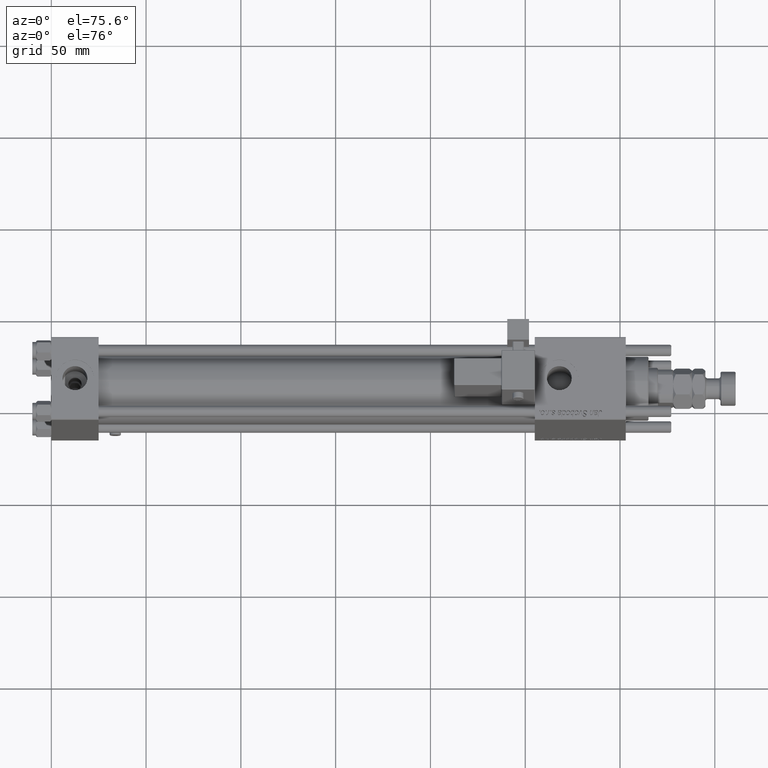
[diagram: clean part render]
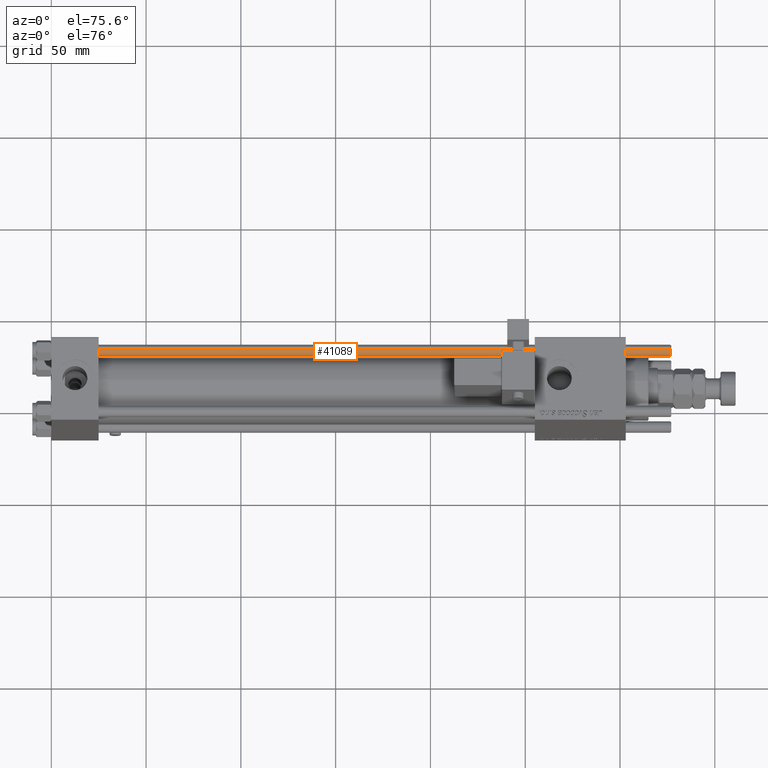
[diagram: same view with one face highlighted and labeled with its STEP entity id]
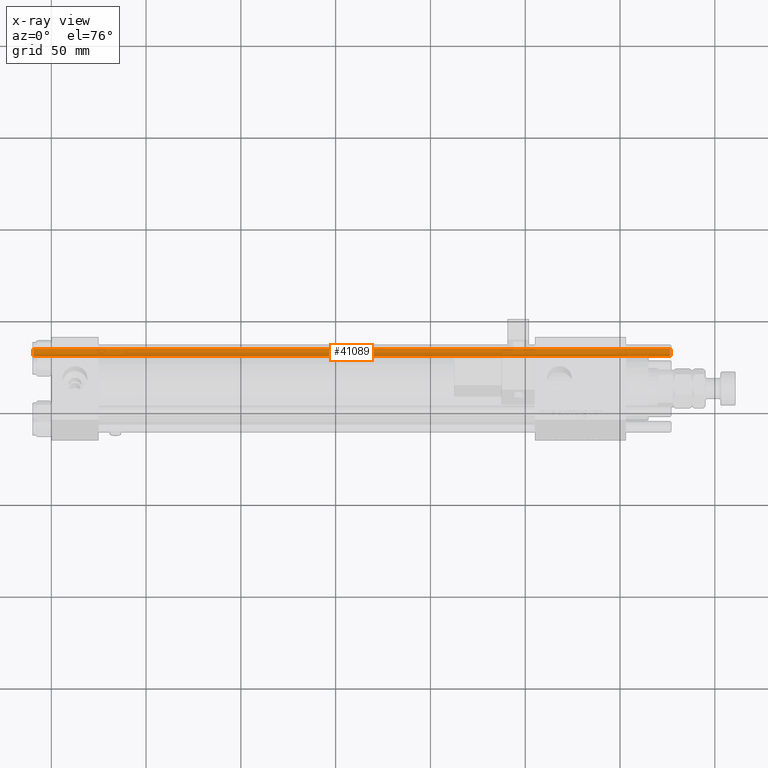
[diagram: x-ray of the same camera — body ghosted, the highlighted face saturated]
A machine part, auxiliary view. The second image highlights one B-rep face of the part: STEP entity #41089.
The next image is the same camera in x-ray: the body ghosted, the highlighted face saturated — about 0% of this face is hidden behind the body in this view.
In plain terms, the highlighted cylindrical surface (edge-blend (fillet) strip) has radius 3 mm, axis along (1, -0, -0).
Its self-contained STEP definition (entity closure, byte-faithful):
#2529 = VECTOR ( 'NONE', #53881, 1000.000000000000000 ) ;
#7905 = EDGE_CURVE ( 'NONE', #51844, #17392, #37523, .T. ) ;
#11475 = VERTEX_POINT ( 'NONE', #19843 ) ;
#13781 = DIRECTION ( 'NONE',  ( -1.000000000000000000, 0.000000000000000000, 0.000000000000000000 ) ) ;
#15283 = EDGE_LOOP ( 'NONE', ( #30188, #55270, #19013, #41381 ) ) ;
#15413 = CARTESIAN_POINT ( 'NONE',  ( 0.000000000000000000, 0.000000000000000000, 0.5000000000000004441 ) ) ;
#16776 = EDGE_CURVE ( 'NONE', #11475, #51061, #46823, .T. ) ;
#17392 = VERTEX_POINT ( 'NONE', #18343 ) ;
#18176 = DIRECTION ( 'NONE',  ( 1.000000000000000000, 0.000000000000000000, 0.000000000000000000 ) ) ;
#18227 = CARTESIAN_POINT ( 'NONE',  ( 0.000000000000000000, 0.000000000000000000, 337.0000000000000000 ) ) ;
#18343 = CARTESIAN_POINT ( 'NONE',  ( 3.000000000000000444, 3.673940397442060361E-16, 0.5000000000000004441 ) ) ;
#18806 = CARTESIAN_POINT ( 'NONE',  ( 0.000000000000000000, 0.000000000000000000, 336.5000000000000568 ) ) ;
#18966 = LINE ( 'NONE', #19914, #2529 ) ;
#19013 = ORIENTED_EDGE ( 'NONE', *, *, #62808, .T. ) ;
#19843 = CARTESIAN_POINT ( 'NONE',  ( 3.000000000000000444, 3.673940397442060361E-16, 336.5000000000000568 ) ) ;
#19855 = DIRECTION ( 'NONE',  ( 1.000000000000000000, 0.000000000000000000, 0.000000000000000000 ) ) ;
#19914 = CARTESIAN_POINT ( 'NONE',  ( 3.000000000000000444, 3.673940397442060361E-16, 337.0000000000000000 ) ) ;
#21937 = VECTOR ( 'NONE', #25668, 1000.000000000000000 ) ;
#22620 = DIRECTION ( 'NONE',  ( 0.000000000000000000, 0.000000000000000000, -1.000000000000000000 ) ) ;
#25668 = DIRECTION ( 'NONE',  ( -0.000000000000000000, -0.000000000000000000, -1.000000000000000000 ) ) ;
#26520 = AXIS2_PLACEMENT_3D ( 'NONE', #18806, #22620, #18176 ) ;
#30188 = ORIENTED_EDGE ( 'NONE', *, *, #55841, .F. ) ;
#30630 = DIRECTION ( 'NONE',  ( -0.000000000000000000, -0.000000000000000000, 1.000000000000000000 ) ) ;
#35168 = LINE ( 'NONE', #54880, #21937 ) ;
#36919 = CARTESIAN_POINT ( 'NONE',  ( -3.000000000000000444, 0.000000000000000000, 336.5000000000000568 ) ) ;
#37523 = CIRCLE ( 'NONE', #38526, 3.000000000000000444 ) ;
#38526 = AXIS2_PLACEMENT_3D ( 'NONE', #15413, #30630, #19855 ) ;
#41089 = ADVANCED_FACE ( 'NONE', ( #61716 ), #52197, .T. ) ;
#41381 = ORIENTED_EDGE ( 'NONE', *, *, #7905, .T. ) ;
#41599 = AXIS2_PLACEMENT_3D ( 'NONE', #18227, #62026, #13781 ) ;
#46823 = CIRCLE ( 'NONE', #26520, 3.000000000000000444 ) ;
#50703 = CARTESIAN_POINT ( 'NONE',  ( -3.000000000000000444, 0.000000000000000000, 0.5000000000000004441 ) ) ;
#51061 = VERTEX_POINT ( 'NONE', #36919 ) ;
#51844 = VERTEX_POINT ( 'NONE', #50703 ) ;
#52197 = CYLINDRICAL_SURFACE ( 'NONE', #41599, 3.000000000000000444 ) ;
#53881 = DIRECTION ( 'NONE',  ( -0.000000000000000000, -0.000000000000000000, -1.000000000000000000 ) ) ;
#54880 = CARTESIAN_POINT ( 'NONE',  ( -3.000000000000000444, 0.000000000000000000, 337.0000000000000000 ) ) ;
#55270 = ORIENTED_EDGE ( 'NONE', *, *, #16776, .T. ) ;
#55841 = EDGE_CURVE ( 'NONE', #11475, #17392, #18966, .T. ) ;
#61716 = FACE_OUTER_BOUND ( 'NONE', #15283, .T. ) ;
#62026 = DIRECTION ( 'NONE',  ( -0.000000000000000000, -0.000000000000000000, -1.000000000000000000 ) ) ;
#62808 = EDGE_CURVE ( 'NONE', #51061, #51844, #35168, .T. ) ;